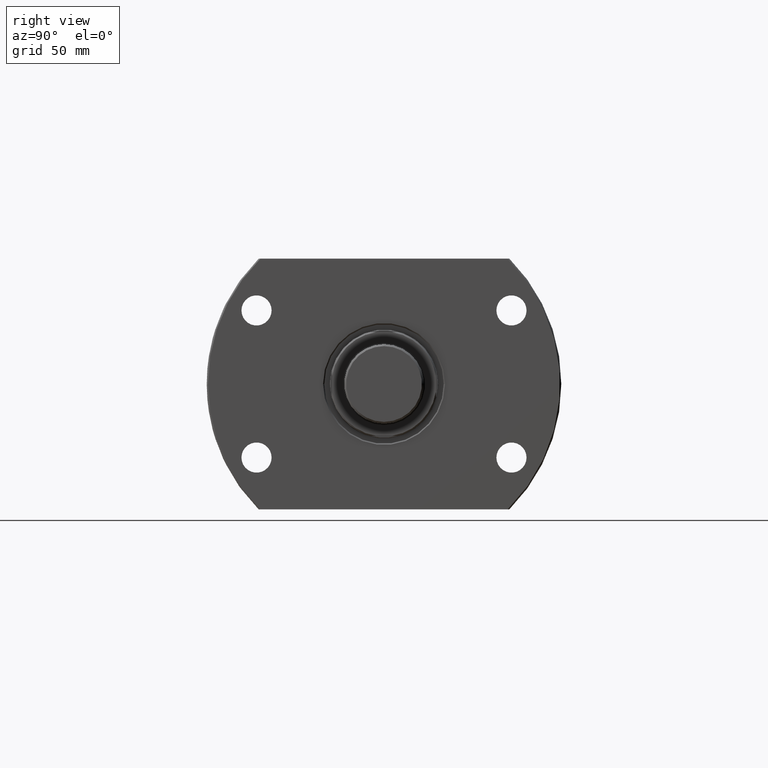
[diagram: clean part render]
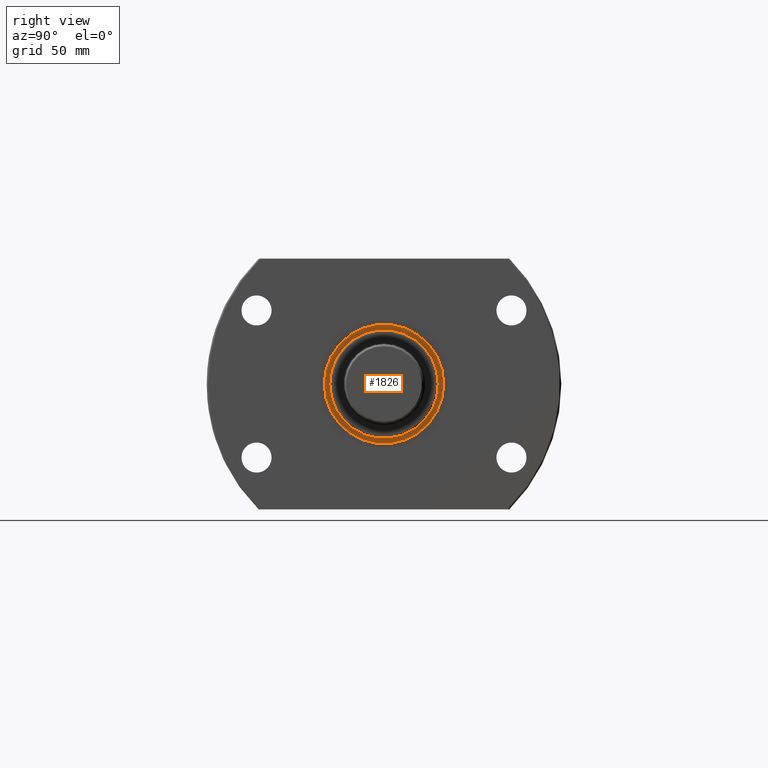
[diagram: same view with one face highlighted and labeled with its STEP entity id]
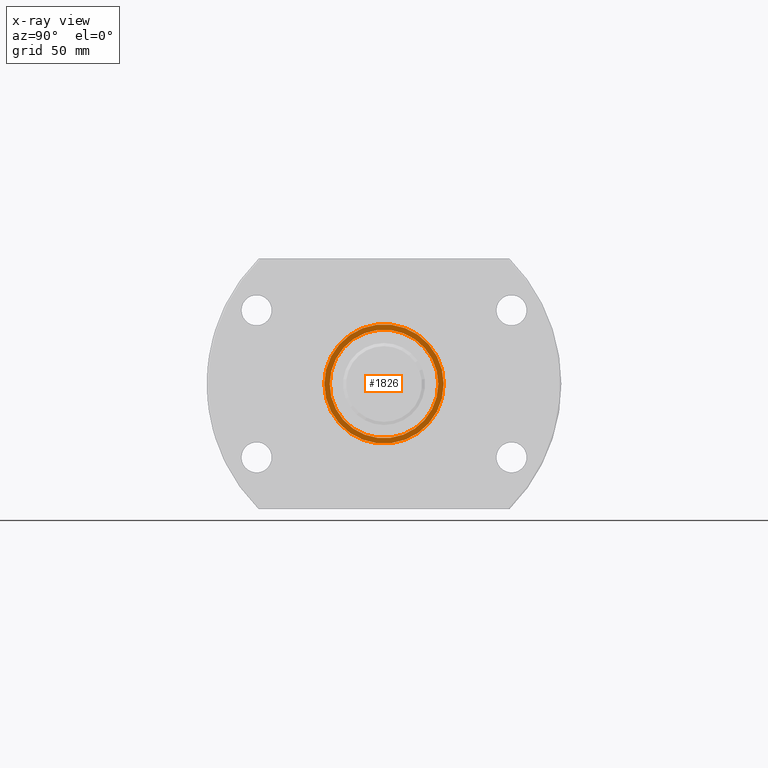
[diagram: x-ray of the same camera — body ghosted, the highlighted face saturated]
A machine part, right view. The second image highlights one B-rep face of the part: STEP entity #1826.
The next image is the same camera in x-ray: the body ghosted, the highlighted face saturated — about 0% of this face is hidden behind the body in this view.
In plain terms, the highlighted planar face has unit normal (1, -0, 0).
Its self-contained STEP definition (entity closure, byte-faithful):
#26 = CIRCLE ( 'NONE', #2109, 22.50000000000000355 ) ;
#179 = DIRECTION ( 'NONE',  ( 2.887701301424017675E-14, 1.000000000000000000, 0.000000000000000000 ) ) ;
#401 = ORIENTED_EDGE ( 'NONE', *, *, #2587, .F. ) ;
#440 = VERTEX_POINT ( 'NONE', #1237 ) ;
#452 = ORIENTED_EDGE ( 'NONE', *, *, #3073, .T. ) ;
#559 = AXIS2_PLACEMENT_3D ( 'NONE', #2365, #971, #2648 ) ;
#602 = VERTEX_POINT ( 'NONE', #1583 ) ;
#734 = CIRCLE ( 'NONE', #3241, 24.75000000000000355 ) ;
#971 = DIRECTION ( 'NONE',  ( 1.000000000000000000, -2.886466111666351885E-14, 0.000000000000000000 ) ) ;
#978 = DIRECTION ( 'NONE',  ( 1.000000000000000000, -2.886466111666351885E-14, 0.000000000000000000 ) ) ;
#996 = VERTEX_POINT ( 'NONE', #1875 ) ;
#1232 = ORIENTED_EDGE ( 'NONE', *, *, #2178, .F. ) ;
#1237 = CARTESIAN_POINT ( 'NONE',  ( 42.50000000000070344, 24.74999999999877787, 0.000000000000000000 ) ) ;
#1304 = CARTESIAN_POINT ( 'NONE',  ( 42.49999999999998579, -1.226748097458199299E-12, 0.000000000000000000 ) ) ;
#1583 = CARTESIAN_POINT ( 'NONE',  ( 42.49999999999933920, -22.50000000000122924, 2.755455298081618931E-15 ) ) ;
#1593 = DIRECTION ( 'NONE',  ( 1.000000000000000000, -2.886466111666351885E-14, 0.000000000000000000 ) ) ;
#1615 = DIRECTION ( 'NONE',  ( 2.898915675410130686E-14, 1.000000000000000000, 0.000000000000000000 ) ) ;
#1686 = AXIS2_PLACEMENT_3D ( 'NONE', #1884, #3033, #179 ) ;
#1771 = PLANE ( 'NONE',  #559 ) ;
#1826 = ADVANCED_FACE ( 'NONE', ( #2088, #3232 ), #1771, .T. ) ;
#1875 = CARTESIAN_POINT ( 'NONE',  ( 42.49999999999927525, -24.75000000000123279, 3.031000827889699650E-15 ) ) ;
#1884 = CARTESIAN_POINT ( 'NONE',  ( 42.49999999999998579, -1.226748097458199299E-12, 0.000000000000000000 ) ) ;
#1914 = AXIS2_PLACEMENT_3D ( 'NONE', #1304, #1593, #2211 ) ;
#2088 = FACE_BOUND ( 'NONE', #3290, .T. ) ;
#2109 = AXIS2_PLACEMENT_3D ( 'NONE', #2216, #3326, #1615 ) ;
#2152 = VERTEX_POINT ( 'NONE', #3063 ) ;
#2178 = EDGE_CURVE ( 'NONE', #2152, #602, #26, .T. ) ;
#2211 = DIRECTION ( 'NONE',  ( 2.898915675410130686E-14, 1.000000000000000000, 0.000000000000000000 ) ) ;
#2216 = CARTESIAN_POINT ( 'NONE',  ( 42.49999999999998579, -1.226748097458199299E-12, 0.000000000000000000 ) ) ;
#2365 = CARTESIAN_POINT ( 'NONE',  ( 42.49999999999998579, -1.226748097458199299E-12, 0.000000000000000000 ) ) ;
#2528 = CIRCLE ( 'NONE', #1914, 22.50000000000000355 ) ;
#2587 = EDGE_CURVE ( 'NONE', #602, #2152, #2528, .T. ) ;
#2648 = DIRECTION ( 'NONE',  ( 2.886466111666351885E-14, 1.000000000000000000, 0.000000000000000000 ) ) ;
#2658 = ORIENTED_EDGE ( 'NONE', *, *, #2929, .T. ) ;
#2929 = EDGE_CURVE ( 'NONE', #440, #996, #734, .T. ) ;
#3021 = EDGE_LOOP ( 'NONE', ( #2658, #452 ) ) ;
#3033 = DIRECTION ( 'NONE',  ( 1.000000000000000000, -2.886466111666351885E-14, 0.000000000000000000 ) ) ;
#3063 = CARTESIAN_POINT ( 'NONE',  ( 42.50000000000063949, 22.49999999999877431, 0.000000000000000000 ) ) ;
#3073 = EDGE_CURVE ( 'NONE', #996, #440, #3419, .T. ) ;
#3221 = DIRECTION ( 'NONE',  ( 2.887701301424017675E-14, 1.000000000000000000, 0.000000000000000000 ) ) ;
#3232 = FACE_OUTER_BOUND ( 'NONE', #3021, .T. ) ;
#3241 = AXIS2_PLACEMENT_3D ( 'NONE', #3458, #978, #3221 ) ;
#3290 = EDGE_LOOP ( 'NONE', ( #1232, #401 ) ) ;
#3326 = DIRECTION ( 'NONE',  ( 1.000000000000000000, -2.886466111666351885E-14, 0.000000000000000000 ) ) ;
#3419 = CIRCLE ( 'NONE', #1686, 24.75000000000000355 ) ;
#3458 = CARTESIAN_POINT ( 'NONE',  ( 42.49999999999998579, -1.226748097458199299E-12, 0.000000000000000000 ) ) ;